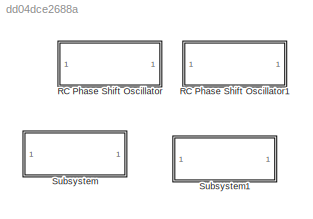
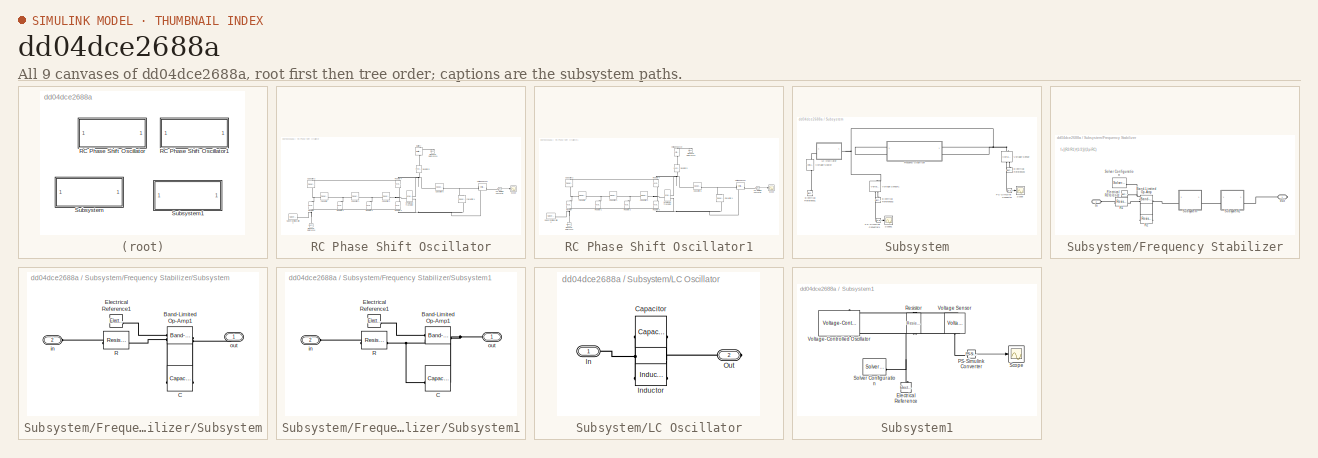
[diagram: thumbnail index - all 9 canvases of the model, root first then tree order]
MODEL slx_dd04dce2688a
KIND model
CONFIG AbsTol = auto
CONFIG EnableMultiTasking = off
CONFIG FixedStep = auto
CONFIG MaxStep = auto
CONFIG MinStep = auto
CONFIG RelTol = 1e-3
CONFIG SampleTimeConstraint = Unconstrained
CONFIG SolverName = VariableStepAuto
CONFIG StartTime = 0.0
CONFIG StopTime = 0.02
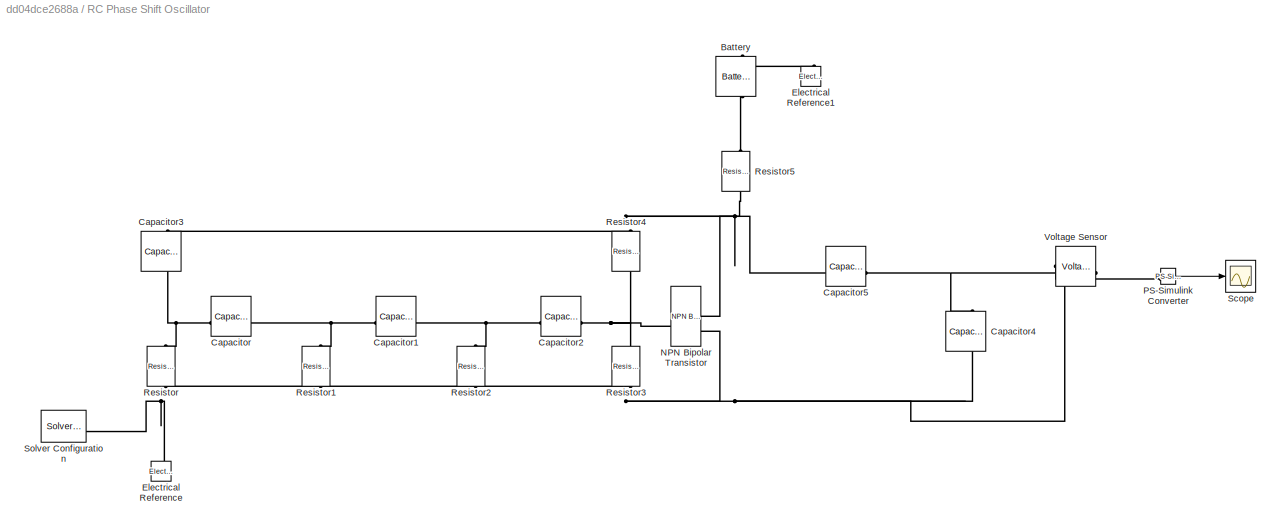
BLOCK [SubSystem] RC Phase Shift Oscillator
BLOCK [Reference] RC Phase Shift Oscillator/Battery  REF=batteryecm_lib/Battery
  NameLocation = right
  SourceBlock = batteryecm_lib/Battery
  SourceType = Battery
BLOCK [Reference] RC Phase Shift Oscillator/Capacitor  REF=fl_lib/Electrical/Electrical Elements/Capacitor
  SourceBlock = fl_lib/Electrical/Electrical Elements/Capacitor
  SourceType = Capacitor
BLOCK [Reference] RC Phase Shift Oscillator/Capacitor1  REF=fl_lib/Electrical/Electrical Elements/Capacitor
  SourceBlock = fl_lib/Electrical/Electrical Elements/Capacitor
  SourceType = Capacitor
BLOCK [Reference] RC Phase Shift Oscillator/Capacitor2  REF=fl_lib/Electrical/Electrical Elements/Capacitor
  SourceBlock = fl_lib/Electrical/Electrical Elements/Capacitor
  SourceType = Capacitor
BLOCK [Reference] RC Phase Shift Oscillator/Capacitor3  REF=fl_lib/Electrical/Electrical Elements/Capacitor
  NameLocation = left
  SourceBlock = fl_lib/Electrical/Electrical Elements/Capacitor
  SourceType = Capacitor
BLOCK [Reference] RC Phase Shift Oscillator/Capacitor4  REF=fl_lib/Electrical/Electrical Elements/Capacitor
  NameLocation = left
  SourceBlock = fl_lib/Electrical/Electrical Elements/Capacitor
  SourceType = Capacitor
BLOCK [Reference] RC Phase Shift Oscillator/Capacitor5  REF=fl_lib/Electrical/Electrical Elements/Capacitor
  SourceBlock = fl_lib/Electrical/Electrical Elements/Capacitor
  SourceType = Capacitor
BLOCK [Reference] RC Phase Shift Oscillator/Electrical Reference  REF=fl_lib/Electrical/Electrical Elements/Electrical Reference
  NameLocation = right
  SourceBlock = fl_lib/Electrical/Electrical Elements/Electrical Reference
  SourceType = Electrical Reference
BLOCK [Reference] RC Phase Shift Oscillator/Electrical Reference1  REF=fl_lib/Electrical/Electrical Elements/Electrical Reference
  NameLocation = right
  SourceBlock = fl_lib/Electrical/Electrical Elements/Electrical Reference
  SourceType = Electrical Reference
BLOCK [Reference] RC Phase Shift Oscillator/NPN Bipolar Transistor  REF=ee_lib/Semiconductors &
Converters/NPN Bipolar
Transistor
  SourceBlock = ee_lib/Semiconductors &\nConverters/NPN Bipolar\nTransistor
  SourceType = NPN Bipolar\nTransistor
BLOCK [Reference] RC Phase Shift Oscillator/PS-Simulink Converter  REF=nesl_utility/PS-Simulink
Converter
  SourceBlock = nesl_utility/PS-Simulink\nConverter
  SourceType = PS-Simulink\nConverter
BLOCK [Reference] RC Phase Shift Oscillator/Resistor  REF=fl_lib/Electrical/Electrical Elements/Resistor
  NameLocation = left
  SourceBlock = fl_lib/Electrical/Electrical Elements/Resistor
  SourceType = Resistor
BLOCK [Reference] RC Phase Shift Oscillator/Resistor1  REF=fl_lib/Electrical/Electrical Elements/Resistor
  NameLocation = left
  SourceBlock = fl_lib/Electrical/Electrical Elements/Resistor
  SourceType = Resistor
BLOCK [Reference] RC Phase Shift Oscillator/Resistor2  REF=fl_lib/Electrical/Electrical Elements/Resistor
  NameLocation = left
  SourceBlock = fl_lib/Electrical/Electrical Elements/Resistor
  SourceType = Resistor
BLOCK [Reference] RC Phase Shift Oscillator/Resistor3  REF=fl_lib/Electrical/Electrical Elements/Resistor
  NameLocation = left
  SourceBlock = fl_lib/Electrical/Electrical Elements/Resistor
  SourceType = Resistor
BLOCK [Reference] RC Phase Shift Oscillator/Resistor4  REF=fl_lib/Electrical/Electrical Elements/Resistor
  NameLocation = left
  SourceBlock = fl_lib/Electrical/Electrical Elements/Resistor
  SourceType = Resistor
BLOCK [Reference] RC Phase Shift Oscillator/Resistor5  REF=fl_lib/Electrical/Electrical Elements/Resistor
  NameLocation = left
  SourceBlock = fl_lib/Electrical/Electrical Elements/Resistor
  SourceType = Resistor
BLOCK [Scope] RC Phase Shift Oscillator/Scope
  Floating = off
  NumInputPorts = 1
  ScopeSpecificationString = Simulink.scopes.TimeScopeBlockCfg('CurrentConfiguration', extmgr.ConfigurationSet(extmgr.Configuration('Core','General UI',true),extmgr.Configuration('Core','Source UI',true),extmgr.Configuration('Sources','WiredSimulink',true),extmgr.Configuration('Visuals','Time Domain',true,'SerializedDisplays',{struct('MinYLimReal','0.00000073','MaxYLimReal','0.00000093','YLabelReal','','MinYLimMag','0.0000007...<+1363ch>
BLOCK [Reference] RC Phase Shift Oscillator/Solver Configuration  REF=nesl_utility/Solver
Configuration
  SourceBlock = nesl_utility/Solver\nConfiguration
  SourceType = Solver\nConfiguration
BLOCK [Reference] RC Phase Shift Oscillator/Voltage Sensor  REF=fl_lib/Electrical/Electrical Sensors/Voltage Sensor
  NameLocation = top
  SourceBlock = fl_lib/Electrical/Electrical Sensors/Voltage Sensor
  SourceType = Voltage Sensor
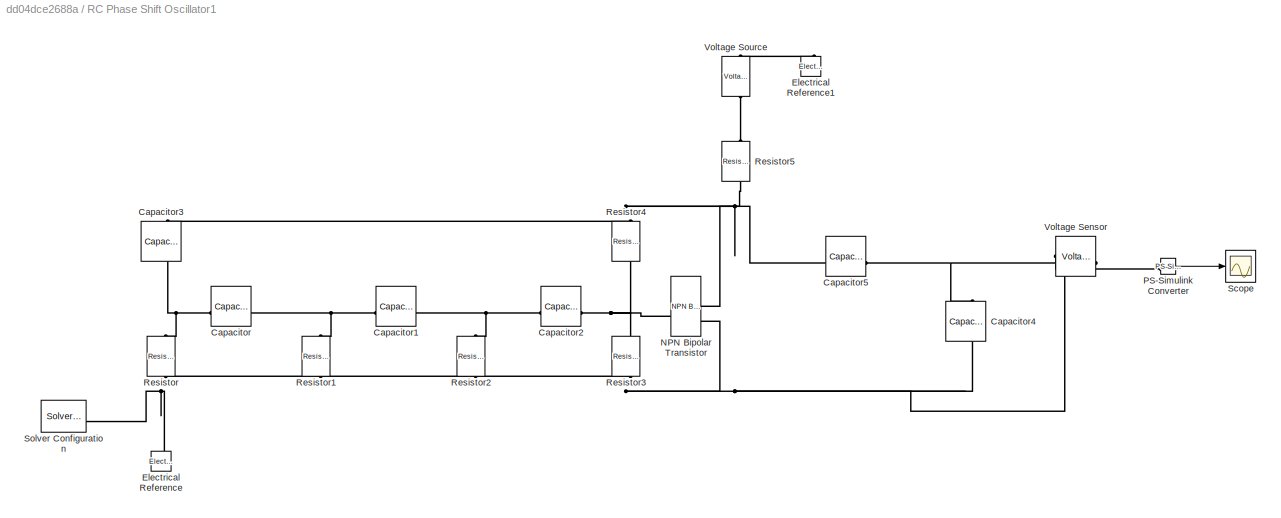
BLOCK [SubSystem] RC Phase Shift Oscillator1
BLOCK [Reference] RC Phase Shift Oscillator1/Capacitor  REF=fl_lib/Electrical/Electrical Elements/Capacitor
  SourceBlock = fl_lib/Electrical/Electrical Elements/Capacitor
  SourceType = Capacitor
BLOCK [Reference] RC Phase Shift Oscillator1/Capacitor1  REF=fl_lib/Electrical/Electrical Elements/Capacitor
  SourceBlock = fl_lib/Electrical/Electrical Elements/Capacitor
  SourceType = Capacitor
BLOCK [Reference] RC Phase Shift Oscillator1/Capacitor2  REF=fl_lib/Electrical/Electrical Elements/Capacitor
  SourceBlock = fl_lib/Electrical/Electrical Elements/Capacitor
  SourceType = Capacitor
BLOCK [Reference] RC Phase Shift Oscillator1/Capacitor3  REF=fl_lib/Electrical/Electrical Elements/Capacitor
  NameLocation = left
  SourceBlock = fl_lib/Electrical/Electrical Elements/Capacitor
  SourceType = Capacitor
BLOCK [Reference] RC Phase Shift Oscillator1/Capacitor4  REF=fl_lib/Electrical/Electrical Elements/Capacitor
  NameLocation = left
  SourceBlock = fl_lib/Electrical/Electrical Elements/Capacitor
  SourceType = Capacitor
BLOCK [Reference] RC Phase Shift Oscillator1/Capacitor5  REF=fl_lib/Electrical/Electrical Elements/Capacitor
  SourceBlock = fl_lib/Electrical/Electrical Elements/Capacitor
  SourceType = Capacitor
BLOCK [Reference] RC Phase Shift Oscillator1/Electrical Reference  REF=fl_lib/Electrical/Electrical Elements/Electrical Reference
  NameLocation = right
  SourceBlock = fl_lib/Electrical/Electrical Elements/Electrical Reference
  SourceType = Electrical Reference
BLOCK [Reference] RC Phase Shift Oscillator1/Electrical Reference1  REF=fl_lib/Electrical/Electrical Elements/Electrical Reference
  NameLocation = right
  SourceBlock = fl_lib/Electrical/Electrical Elements/Electrical Reference
  SourceType = Electrical Reference
BLOCK [Reference] RC Phase Shift Oscillator1/NPN Bipolar Transistor  REF=ee_lib/Semiconductors &
Converters/NPN Bipolar
Transistor
  SourceBlock = ee_lib/Semiconductors &\nConverters/NPN Bipolar\nTransistor
  SourceType = NPN Bipolar\nTransistor
BLOCK [Reference] RC Phase Shift Oscillator1/PS-Simulink Converter  REF=nesl_utility/PS-Simulink
Converter
  SourceBlock = nesl_utility/PS-Simulink\nConverter
  SourceType = PS-Simulink\nConverter
BLOCK [Reference] RC Phase Shift Oscillator1/Resistor  REF=fl_lib/Electrical/Electrical Elements/Resistor
  NameLocation = left
  SourceBlock = fl_lib/Electrical/Electrical Elements/Resistor
  SourceType = Resistor
BLOCK [Reference] RC Phase Shift Oscillator1/Resistor1  REF=fl_lib/Electrical/Electrical Elements/Resistor
  NameLocation = left
  SourceBlock = fl_lib/Electrical/Electrical Elements/Resistor
  SourceType = Resistor
BLOCK [Reference] RC Phase Shift Oscillator1/Resistor2  REF=fl_lib/Electrical/Electrical Elements/Resistor
  NameLocation = left
  SourceBlock = fl_lib/Electrical/Electrical Elements/Resistor
  SourceType = Resistor
BLOCK [Reference] RC Phase Shift Oscillator1/Resistor3  REF=fl_lib/Electrical/Electrical Elements/Resistor
  NameLocation = left
  SourceBlock = fl_lib/Electrical/Electrical Elements/Resistor
  SourceType = Resistor
BLOCK [Reference] RC Phase Shift Oscillator1/Resistor4  REF=fl_lib/Electrical/Electrical Elements/Resistor
  NameLocation = left
  SourceBlock = fl_lib/Electrical/Electrical Elements/Resistor
  SourceType = Resistor
BLOCK [Reference] RC Phase Shift Oscillator1/Resistor5  REF=fl_lib/Electrical/Electrical Elements/Resistor
  NameLocation = left
  SourceBlock = fl_lib/Electrical/Electrical Elements/Resistor
  SourceType = Resistor
BLOCK [Scope] RC Phase Shift Oscillator1/Scope
  Floating = off
  NumInputPorts = 1
  ScopeSpecificationString = Simulink.scopes.TimeScopeBlockCfg('CurrentConfiguration', extmgr.ConfigurationSet(extmgr.Configuration('Core','General UI',true),extmgr.Configuration('Core','Source UI',true),extmgr.Configuration('Sources','WiredSimulink',true),extmgr.Configuration('Visuals','Time Domain',true,'SerializedDisplays',{struct('MinYLimReal','-1.00000','MaxYLimReal','1.00000','YLabelReal','','MinYLimMag','0.00000','MaxY...<+1367ch>
BLOCK [Reference] RC Phase Shift Oscillator1/Solver Configuration  REF=nesl_utility/Solver
Configuration
  SourceBlock = nesl_utility/Solver\nConfiguration
  SourceType = Solver\nConfiguration
BLOCK [Reference] RC Phase Shift Oscillator1/Voltage Sensor  REF=fl_lib/Electrical/Electrical Sensors/Voltage Sensor
  NameLocation = top
  SourceBlock = fl_lib/Electrical/Electrical Sensors/Voltage Sensor
  SourceType = Voltage Sensor
BLOCK [Reference] RC Phase Shift Oscillator1/Voltage Source  REF=ee_lib/Sources/Voltage Source
  NameLocation = left
  SourceBlock = ee_lib/Sources/Voltage Source
  SourceType = Voltage Source
BLOCK [SubSystem] Subsystem
BLOCK [Reference] Subsystem/Electrical Reference1  REF=fl_lib/Electrical/Electrical Elements/Electrical Reference
  LibrarySourceBlock = ee_lib/Connectors &\nReferences/Electrical Reference
  NameLocation = right
  SourceBlock = fl_lib/Electrical/Electrical Elements/Electrical Reference
  SourceType = Electrical Reference
BLOCK [Reference] Subsystem/Electrical Reference2  REF=fl_lib/Electrical/Electrical Elements/Electrical Reference
  NameLocation = right
  SourceBlock = fl_lib/Electrical/Electrical Elements/Electrical Reference
  SourceType = Electrical Reference
BLOCK [Reference] Subsystem/Electrical Reference3  REF=fl_lib/Electrical/Electrical Elements/Electrical Reference
  NameLocation = right
  SourceBlock = fl_lib/Electrical/Electrical Elements/Electrical Reference
  SourceType = Electrical Reference
BLOCK [SubSystem] Subsystem/Frequency Stabilizer
BLOCK [Reference] Subsystem/Frequency Stabilizer/Band-Limited Op-Amp  REF=ee_lib/Integrated Circuits/Band-Limited Op-Amp
  SourceBlock = ee_lib/Integrated Circuits/Band-Limited Op-Amp
  SourceType = Band-Limited Op-Amp
BLOCK [Reference] Subsystem/Frequency Stabilizer/Electrical Reference  REF=fl_lib/Electrical/Electrical Elements/Electrical Reference
  LibrarySourceBlock = ee_lib/Connectors &\nReferences/Electrical Reference
  SourceBlock = fl_lib/Electrical/Electrical Elements/Electrical Reference
  SourceType = Electrical Reference
BLOCK [PMIOPort] Subsystem/Frequency Stabilizer/In
  Port = 2
  Side = Left
BLOCK [Reference] Subsystem/Frequency Stabilizer/R1  REF=fl_lib/Electrical/Electrical Elements/Resistor
  SourceBlock = fl_lib/Electrical/Electrical Elements/Resistor
  SourceType = Resistor
BLOCK [Reference] Subsystem/Frequency Stabilizer/R2  REF=fl_lib/Electrical/Electrical Elements/Resistor
  SourceBlock = fl_lib/Electrical/Electrical Elements/Resistor
  SourceType = Resistor
BLOCK [Reference] Subsystem/Frequency Stabilizer/Solver Configuration  REF=nesl_utility/Solver
Configuration
  SourceBlock = nesl_utility/Solver\nConfiguration
  SourceType = Solver\nConfiguration
BLOCK [SubSystem] Subsystem/Frequency Stabilizer/Subsystem
BLOCK [Reference] Subsystem/Frequency Stabilizer/Subsystem/Band-Limited Op-Amp1  REF=ee_lib/Integrated Circuits/Band-Limited Op-Amp
  SourceBlock = ee_lib/Integrated Circuits/Band-Limited Op-Amp
  SourceType = Band-Limited Op-Amp
BLOCK [Reference] Subsystem/Frequency Stabilizer/Subsystem/C  REF=fl_lib/Electrical/Electrical Elements/Capacitor
  SourceBlock = fl_lib/Electrical/Electrical Elements/Capacitor
  SourceType = Capacitor
BLOCK [Reference] Subsystem/Frequency Stabilizer/Subsystem/Electrical Reference1  REF=fl_lib/Electrical/Electrical Elements/Electrical Reference
  LibrarySourceBlock = ee_lib/Connectors &\nReferences/Electrical Reference
  SourceBlock = fl_lib/Electrical/Electrical Elements/Electrical Reference
  SourceType = Electrical Reference
BLOCK [Reference] Subsystem/Frequency Stabilizer/Subsystem/R  REF=fl_lib/Electrical/Electrical Elements/Resistor
  SourceBlock = fl_lib/Electrical/Electrical Elements/Resistor
  SourceType = Resistor
BLOCK [PMIOPort] Subsystem/Frequency Stabilizer/Subsystem/in
  Port = 2
  Side = Left
BLOCK [PMIOPort] Subsystem/Frequency Stabilizer/Subsystem/out
  Side = Right
BLOCK [SubSystem] Subsystem/Frequency Stabilizer/Subsystem1
BLOCK [Reference] Subsystem/Frequency Stabilizer/Subsystem1/Band-Limited Op-Amp1  REF=ee_lib/Integrated Circuits/Band-Limited Op-Amp
  SourceBlock = ee_lib/Integrated Circuits/Band-Limited Op-Amp
  SourceType = Band-Limited Op-Amp
BLOCK [Reference] Subsystem/Frequency Stabilizer/Subsystem1/C  REF=fl_lib/Electrical/Electrical Elements/Capacitor
  SourceBlock = fl_lib/Electrical/Electrical Elements/Capacitor
  SourceType = Capacitor
BLOCK [Reference] Subsystem/Frequency Stabilizer/Subsystem1/Electrical Reference1  REF=fl_lib/Electrical/Electrical Elements/Electrical Reference
  LibrarySourceBlock = ee_lib/Connectors &\nReferences/Electrical Reference
  SourceBlock = fl_lib/Electrical/Electrical Elements/Electrical Reference
  SourceType = Electrical Reference
BLOCK [Reference] Subsystem/Frequency Stabilizer/Subsystem1/R  REF=fl_lib/Electrical/Electrical Elements/Resistor
  SourceBlock = fl_lib/Electrical/Electrical Elements/Resistor
  SourceType = Resistor
BLOCK [PMIOPort] Subsystem/Frequency Stabilizer/Subsystem1/in
  Port = 2
  Side = Left
BLOCK [PMIOPort] Subsystem/Frequency Stabilizer/Subsystem1/out
  Side = Right
BLOCK [PMIOPort] Subsystem/Frequency Stabilizer/out
  Side = Right
BLOCK [SubSystem] Subsystem/LC Oscillator
BLOCK [Reference] Subsystem/LC Oscillator/Capacitor  REF=ee_lib/Passive/Capacitor
  SourceBlock = ee_lib/Passive/Capacitor
  SourceType = Capacitor
BLOCK [PMIOPort] Subsystem/LC Oscillator/In
  Side = Left
BLOCK [Reference] Subsystem/LC Oscillator/Inductor  REF=ee_lib/Passive/Inductor
  SourceBlock = ee_lib/Passive/Inductor
  SourceType = Inductor
BLOCK [PMIOPort] Subsystem/LC Oscillator/Out
  NameLocation = top
  Port = 2
  Side = Right
BLOCK [Reference] Subsystem/PS-Simulink Converter  REF=nesl_utility/PS-Simulink
Converter
  SourceBlock = nesl_utility/PS-Simulink\nConverter
  SourceType = PS-Simulink\nConverter
BLOCK [Reference] Subsystem/PS-Simulink Converter1  REF=nesl_utility/PS-Simulink
Converter
  SourceBlock = nesl_utility/PS-Simulink\nConverter
  SourceType = PS-Simulink\nConverter
BLOCK [Scope] Subsystem/Scope
  Floating = off
  NumInputPorts = 1
  ScopeSpecificationString = Simulink.scopes.TimeScopeBlockCfg('CurrentConfiguration', extmgr.ConfigurationSet(extmgr.Configuration('Core','General UI',true),extmgr.Configuration('Core','Source UI',true),extmgr.Configuration('Sources','WiredSimulink',true,'DataLoggingVariableName','ScopeData1'),extmgr.Configuration('Visuals','Time Domain',true,'SerializedDisplays',{struct('MinYLimReal','-0.000000000000000000000000000000000000...<+3808ch>
BLOCK [Scope] Subsystem/Scope1
  Floating = off
  NumInputPorts = 1
  ScopeSpecificationString = Simulink.scopes.TimeScopeBlockCfg('CurrentConfiguration', extmgr.ConfigurationSet(extmgr.Configuration('Core','General UI',true),extmgr.Configuration('Core','Source UI',true),extmgr.Configuration('Sources','WiredSimulink',true,'DataLoggingVariableName','ScopeData2'),extmgr.Configuration('Visuals','Time Domain',true,'SerializedDisplays',{struct('MinYLimReal','-0.000000000000000000000000000000000000...<+3809ch>
BLOCK [Reference] Subsystem/Voltage Sensor  REF=fl_lib/Electrical/Electrical Sensors/Voltage Sensor
  NameLocation = right
  SourceBlock = fl_lib/Electrical/Electrical Sensors/Voltage Sensor
  SourceType = Voltage Sensor
BLOCK [Reference] Subsystem/Voltage Sensor1  REF=fl_lib/Electrical/Electrical Sensors/Voltage Sensor
  NameLocation = right
  SourceBlock = fl_lib/Electrical/Electrical Sensors/Voltage Sensor
  SourceType = Voltage Sensor
BLOCK [Reference] Subsystem/Voltage Source  REF=ee_lib/Sources/Voltage Source
  NameLocation = right
  SourceBlock = ee_lib/Sources/Voltage Source
  SourceType = Voltage Source
BLOCK [SubSystem] Subsystem1
BLOCK [Reference] Subsystem1/Electrical Reference  REF=fl_lib/Electrical/Electrical Elements/Electrical Reference
  NameLocation = right
  SourceBlock = fl_lib/Electrical/Electrical Elements/Electrical Reference
  SourceType = Electrical Reference
BLOCK [Reference] Subsystem1/PS-Simulink Converter  REF=nesl_utility/PS-Simulink
Converter
  SourceBlock = nesl_utility/PS-Simulink\nConverter
  SourceType = PS-Simulink\nConverter
BLOCK [Reference] Subsystem1/Resistor  REF=fl_lib/Electrical/Electrical Elements/Resistor
  NameLocation = left
  SourceBlock = fl_lib/Electrical/Electrical Elements/Resistor
  SourceType = Resistor
BLOCK [Scope] Subsystem1/Scope
  Floating = off
  NumInputPorts = 1
  ScopeSpecificationString = Simulink.scopes.TimeScopeBlockCfg('CurrentConfiguration', extmgr.ConfigurationSet(extmgr.Configuration('Core','General UI',true),extmgr.Configuration('Core','Source UI',true),extmgr.Configuration('Sources','WiredSimulink',true,'DataLoggingVariableName','ScopeData3'),extmgr.Configuration('Visuals','Time Domain',true,'SerializedDisplays',{struct('MinYLimReal','-1.00000','MaxYLimReal','1.00000','YLab...<+1406ch>
BLOCK [Reference] Subsystem1/Solver Configuration  REF=nesl_utility/Solver
Configuration
  SourceBlock = nesl_utility/Solver\nConfiguration
  SourceType = Solver\nConfiguration
BLOCK [Reference] Subsystem1/Voltage Sensor  REF=fl_lib/Electrical/Electrical Sensors/Voltage Sensor
  NameLocation = right
  SourceBlock = fl_lib/Electrical/Electrical Sensors/Voltage Sensor
  SourceType = Voltage Sensor
BLOCK [Reference] Subsystem1/Voltage-Controlled Oscillator  REF=ee_lib/Integrated Circuits/Voltage-Controlled
Oscillator
  NameLocation = right
  SourceBlock = ee_lib/Integrated Circuits/Voltage-Controlled\nOscillator
  SourceType = Voltage-Controlled\nOscillator
ANNOTATION Subsystem/Frequency Stabilizer: f=[(R2/R1)^(1/2)]/(2piRC)
LINE RC Phase Shift Oscillator/PS-Simulink Converter:1 -> RC Phase Shift Oscillator/Scope:1
LINE RC Phase Shift Oscillator1/PS-Simulink Converter:1 -> RC Phase Shift Oscillator1/Scope:1
LINE Subsystem/PS-Simulink Converter1:1 -> Subsystem/Scope1:1
LINE Subsystem/PS-Simulink Converter:1 -> Subsystem/Scope:1
LINE Subsystem1/PS-Simulink Converter:1 -> Subsystem1/Scope:1
PLINE RC Phase Shift Oscillator/Battery:LConn1 -- RC Phase Shift Oscillator/Resistor5:LConn1
PLINE RC Phase Shift Oscillator/Battery:RConn1 -- RC Phase Shift Oscillator/Electrical Reference1:LConn1
PNET net1: RC Phase Shift Oscillator/Capacitor1:LConn1 -- RC Phase Shift Oscillator/Capacitor:RConn1 -- RC Phase Shift Oscillator/Resistor1:LConn1
PNET net2: RC Phase Shift Oscillator/Capacitor1:RConn1 -- RC Phase Shift Oscillator/Capacitor2:LConn1 -- RC Phase Shift Oscillator/Resistor2:LConn1
PNET net3: RC Phase Shift Oscillator/Capacitor2:RConn1 -- RC Phase Shift Oscillator/NPN Bipolar Transistor:LConn1 -- RC Phase Shift Oscillator/Resistor3:LConn1 -- RC Phase Shift Oscillator/Resistor4:RConn1
PNET net4: RC Phase Shift Oscillator/Capacitor3:LConn1 -- RC Phase Shift Oscillator/Capacitor5:LConn1 -- RC Phase Shift Oscillator/NPN Bipolar Transistor:RConn1 -- RC Phase Shift Oscillator/Resistor4:LConn1 -- RC Phase Shift Oscillator/Resistor5:RConn1
PNET net5: RC Phase Shift Oscillator/Capacitor3:RConn1 -- RC Phase Shift Oscillator/Capacitor:LConn1 -- RC Phase Shift Oscillator/Resistor:LConn1
PNET net6: RC Phase Shift Oscillator/Capacitor4:LConn1 -- RC Phase Shift Oscillator/Capacitor5:RConn1 -- RC Phase Shift Oscillator/Voltage Sensor:LConn1
PNET net7: RC Phase Shift Oscillator/Capacitor4:RConn1 -- RC Phase Shift Oscillator/Electrical Reference:LConn1 -- RC Phase Shift Oscillator/NPN Bipolar Transistor:RConn2 -- RC Phase Shift Oscillator/Resistor1:RConn1 -- RC Phase Shift Oscillator/Resistor2:RConn1 -- RC Phase Shift Oscillator/Resistor3:RConn1 -- RC Phase Shift Oscillator/Resistor:RConn1 -- RC Phase Shift Oscillator/Solver Configuration:RConn1 -- RC Phase Shift Oscillator/Voltage Sensor:RConn2
PLINE RC Phase Shift Oscillator/PS-Simulink Converter:LConn1 -- RC Phase Shift Oscillator/Voltage Sensor:RConn1
PNET net8: RC Phase Shift Oscillator1/Capacitor1:LConn1 -- RC Phase Shift Oscillator1/Capacitor:RConn1 -- RC Phase Shift Oscillator1/Resistor1:LConn1
PNET net9: RC Phase Shift Oscillator1/Capacitor1:RConn1 -- RC Phase Shift Oscillator1/Capacitor2:LConn1 -- RC Phase Shift Oscillator1/Resistor2:LConn1
PNET net10: RC Phase Shift Oscillator1/Capacitor2:RConn1 -- RC Phase Shift Oscillator1/NPN Bipolar Transistor:LConn1 -- RC Phase Shift Oscillator1/Resistor3:LConn1 -- RC Phase Shift Oscillator1/Resistor4:RConn1
PNET net11: RC Phase Shift Oscillator1/Capacitor3:LConn1 -- RC Phase Shift Oscillator1/Capacitor5:LConn1 -- RC Phase Shift Oscillator1/NPN Bipolar Transistor:RConn1 -- RC Phase Shift Oscillator1/Resistor4:LConn1 -- RC Phase Shift Oscillator1/Resistor5:RConn1
PNET net12: RC Phase Shift Oscillator1/Capacitor3:RConn1 -- RC Phase Shift Oscillator1/Capacitor:LConn1 -- RC Phase Shift Oscillator1/Resistor:LConn1
PNET net13: RC Phase Shift Oscillator1/Capacitor4:LConn1 -- RC Phase Shift Oscillator1/Capacitor5:RConn1 -- RC Phase Shift Oscillator1/Voltage Sensor:LConn1
PNET net14: RC Phase Shift Oscillator1/Capacitor4:RConn1 -- RC Phase Shift Oscillator1/Electrical Reference:LConn1 -- RC Phase Shift Oscillator1/NPN Bipolar Transistor:RConn2 -- RC Phase Shift Oscillator1/Resistor1:RConn1 -- RC Phase Shift Oscillator1/Resistor2:RConn1 -- RC Phase Shift Oscillator1/Resistor3:RConn1 -- RC Phase Shift Oscillator1/Resistor:RConn1 -- RC Phase Shift Oscillator1/Solver Configuration:RConn1 -- RC Phase Shift Oscillator1/Voltage Sensor:RConn2
PLINE RC Phase Shift Oscillator1/Electrical Reference1:LConn1 -- RC Phase Shift Oscillator1/Voltage Source:RConn1
PLINE RC Phase Shift Oscillator1/PS-Simulink Converter:LConn1 -- RC Phase Shift Oscillator1/Voltage Sensor:RConn1
PLINE RC Phase Shift Oscillator1/Resistor5:LConn1 -- RC Phase Shift Oscillator1/Voltage Source:LConn1
PLINE Subsystem/Electrical Reference1:LConn1 -- Subsystem/Voltage Source:RConn1
PLINE Subsystem/Electrical Reference2:LConn1 -- Subsystem/Voltage Sensor1:RConn2
PLINE Subsystem/Electrical Reference3:LConn1 -- Subsystem/Voltage Sensor:RConn2
PNET net15: Subsystem/Frequency Stabilizer/Band-Limited Op-Amp:LConn1 -- Subsystem/Frequency Stabilizer/Electrical Reference:LConn1 -- Subsystem/Frequency Stabilizer/Solver Configuration:RConn1
PNET net16: Subsystem/Frequency Stabilizer/Band-Limited Op-Amp:LConn2 -- Subsystem/Frequency Stabilizer/R1:RConn1 -- Subsystem/Frequency Stabilizer/R2:LConn1
PNET net17: Subsystem/Frequency Stabilizer/Band-Limited Op-Amp:RConn1 -- Subsystem/Frequency Stabilizer/R2:RConn1 -- Subsystem/Frequency Stabilizer/Subsystem:LConn1
PLINE Subsystem/Frequency Stabilizer/In:RConn1 -- Subsystem/Frequency Stabilizer/R1:LConn1
PLINE Subsystem/Frequency Stabilizer/Subsystem/Band-Limited Op-Amp1:LConn1 -- Subsystem/Frequency Stabilizer/Subsystem/Electrical Reference1:LConn1
PNET net18: Subsystem/Frequency Stabilizer/Subsystem/Band-Limited Op-Amp1:LConn2 -- Subsystem/Frequency Stabilizer/Subsystem/C:LConn1 -- Subsystem/Frequency Stabilizer/Subsystem/R:RConn1
PNET net19: Subsystem/Frequency Stabilizer/Subsystem/Band-Limited Op-Amp1:RConn1 -- Subsystem/Frequency Stabilizer/Subsystem/C:RConn1 -- Subsystem/Frequency Stabilizer/Subsystem/out:RConn1
PLINE Subsystem/Frequency Stabilizer/Subsystem/R:LConn1 -- Subsystem/Frequency Stabilizer/Subsystem/in:RConn1
PLINE Subsystem/Frequency Stabilizer/Subsystem1/Band-Limited Op-Amp1:LConn1 -- Subsystem/Frequency Stabilizer/Subsystem1/Electrical Reference1:LConn1
PNET net20: Subsystem/Frequency Stabilizer/Subsystem1/Band-Limited Op-Amp1:LConn2 -- Subsystem/Frequency Stabilizer/Subsystem1/C:LConn1 -- Subsystem/Frequency Stabilizer/Subsystem1/R:RConn1
PNET net21: Subsystem/Frequency Stabilizer/Subsystem1/Band-Limited Op-Amp1:RConn1 -- Subsystem/Frequency Stabilizer/Subsystem1/C:RConn1 -- Subsystem/Frequency Stabilizer/Subsystem1/out:RConn1
PLINE Subsystem/Frequency Stabilizer/Subsystem1/R:LConn1 -- Subsystem/Frequency Stabilizer/Subsystem1/in:RConn1
PLINE Subsystem/Frequency Stabilizer/Subsystem1:LConn1 -- Subsystem/Frequency Stabilizer/Subsystem:RConn1
PLINE Subsystem/Frequency Stabilizer/Subsystem1:RConn1 -- Subsystem/Frequency Stabilizer/out:RConn1
PNET net22: Subsystem/Frequency Stabilizer:LConn1 -- Subsystem/Frequency Stabilizer:RConn1 -- Subsystem/LC Oscillator:RConn1 -- Subsystem/Voltage Sensor1:LConn1 -- Subsystem/Voltage Sensor:LConn1
PNET net23: Subsystem/LC Oscillator/Capacitor:LConn1 -- Subsystem/LC Oscillator/In:RConn1 -- Subsystem/LC Oscillator/Inductor:LConn1
PNET net24: Subsystem/LC Oscillator/Capacitor:RConn1 -- Subsystem/LC Oscillator/Inductor:RConn1 -- Subsystem/LC Oscillator/Out:RConn1
PLINE Subsystem/LC Oscillator:LConn1 -- Subsystem/Voltage Source:LConn1
PLINE Subsystem/PS-Simulink Converter1:LConn1 -- Subsystem/Voltage Sensor1:RConn1
PLINE Subsystem/PS-Simulink Converter:LConn1 -- Subsystem/Voltage Sensor:RConn1
PNET net25: Subsystem1/Electrical Reference:LConn1 -- Subsystem1/Resistor:RConn1 -- Subsystem1/Solver Configuration:RConn1 -- Subsystem1/Voltage Sensor:RConn2 -- Subsystem1/Voltage-Controlled Oscillator:RConn2
PLINE Subsystem1/PS-Simulink Converter:LConn1 -- Subsystem1/Voltage Sensor:RConn1
PNET net26: Subsystem1/Resistor:LConn1 -- Subsystem1/Voltage Sensor:LConn1 -- Subsystem1/Voltage-Controlled Oscillator:LConn2
note: PNET lines group multi-terminal physical nets as a canonical sorted terminal list (undirected conserving connections); 2-terminal nets keep the pairwise PLINE form
